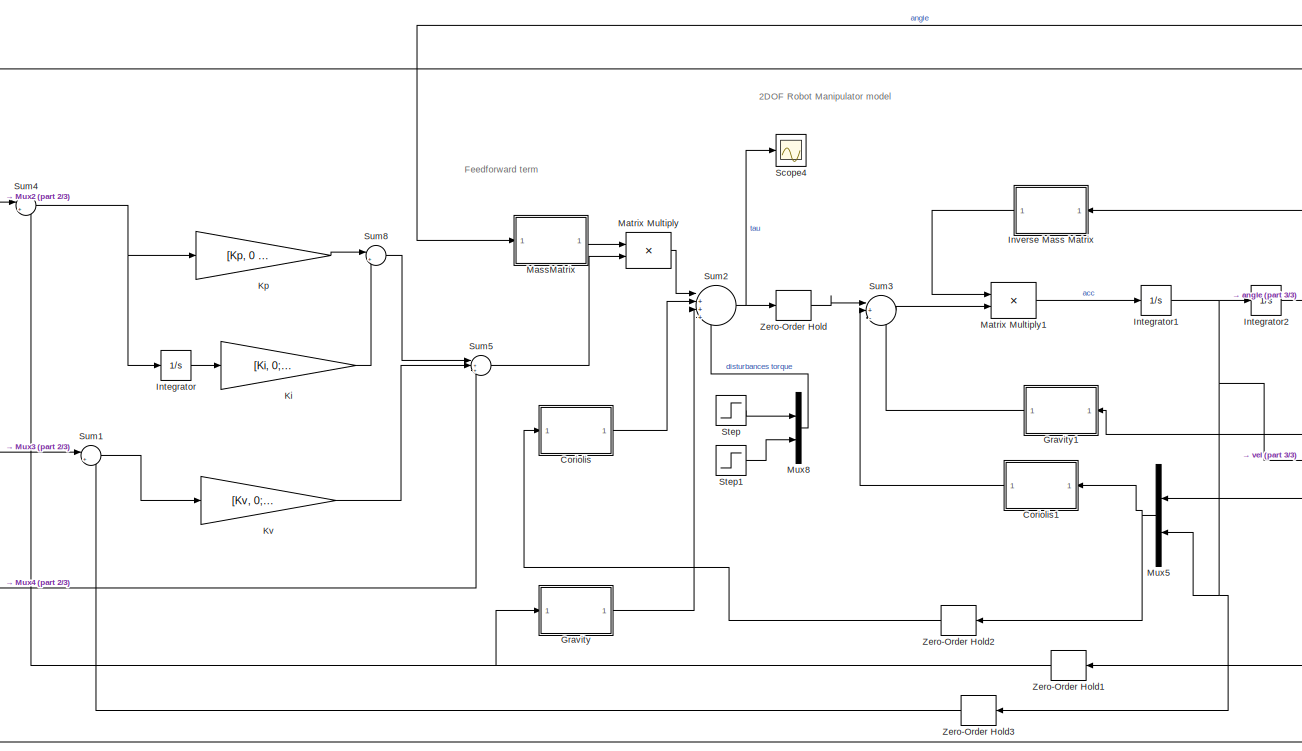
[diagram: root canvas - part 1/3, center side, full height]
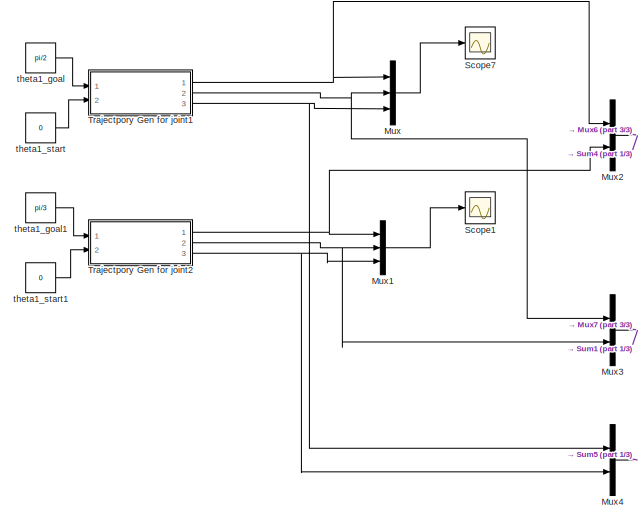
[diagram: root canvas - part 2/3, middle left region]
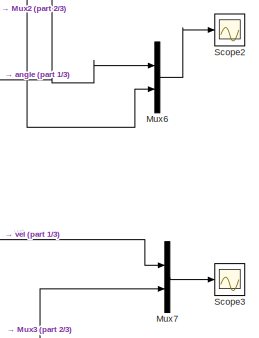
[diagram: root canvas - part 3/3, middle right region]
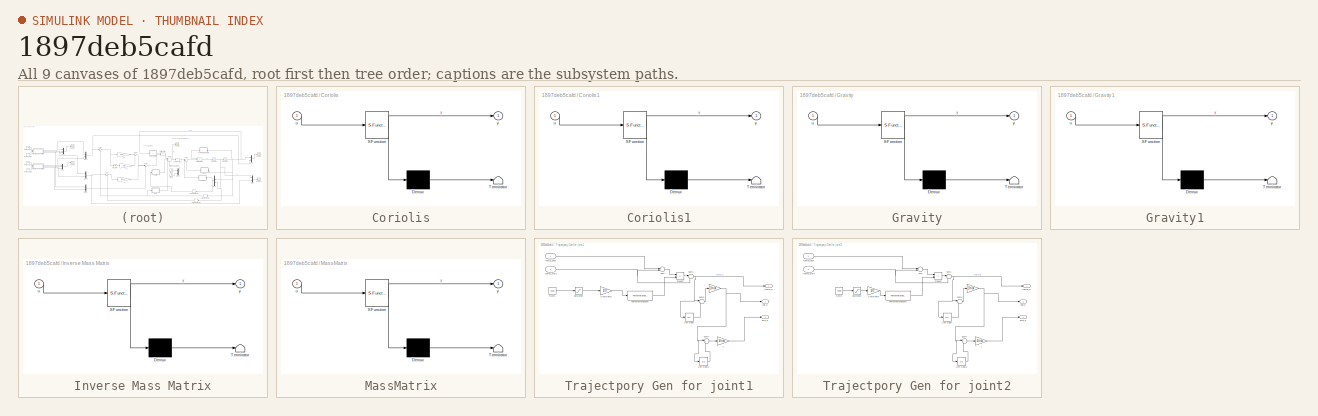
[diagram: thumbnail index - all 9 canvases of the model, root first then tree order]
MODEL slx_1897deb5cafd
KIND model
CONFIG AbsTol = auto
CONFIG EnableMultiTasking = off
CONFIG FixedStep = auto
CONFIG MaxStep = auto
CONFIG MinStep = auto
CONFIG RelTol = 1e-3
CONFIG SampleTimeConstraint = Unconstrained
CONFIG Solver = ode45
CONFIG SolverName = ode45
CONFIG StartTime = 0.0
CONFIG StopTime = 20
BLOCK [SubSystem] Coriolis
  ErrorFcn = Stateflow.Translate.translate
  PermitHierarchicalResolution = ExplicitOnly
  Ports = [1, 1]
  RequestExecContextInheritance = off
  SFBlockType = MATLAB Function
  TreatAsAtomicUnit = on
BLOCK [Demux] Coriolis/ Demux 
  Outputs = 1
  Ports = [1, 1]
BLOCK [S-Function] Coriolis/ SFunction 
  EnableBusSupport = on
  FunctionName = sf_sfun
  PortCounts = [1 2]
  Ports = [1, 2]
  SFcnIsStateOwnerBlock = off
  SFunctionDeploymentMode = off
  Tag = Stateflow S-Function CTC2DOF 1
BLOCK [Terminator] Coriolis/ Terminator 
BLOCK [Inport] Coriolis/u
  IconDisplay = Port number
BLOCK [Outport] Coriolis/y
  IconDisplay = Port number
BLOCK [SubSystem] Coriolis1
  ErrorFcn = Stateflow.Translate.translate
  PermitHierarchicalResolution = ExplicitOnly
  Ports = [1, 1]
  RequestExecContextInheritance = off
  SFBlockType = MATLAB Function
  TreatAsAtomicUnit = on
BLOCK [Demux] Coriolis1/ Demux 
  Outputs = 1
  Ports = [1, 1]
BLOCK [S-Function] Coriolis1/ SFunction 
  EnableBusSupport = on
  FunctionName = sf_sfun
  PortCounts = [1 2]
  Ports = [1, 2]
  SFcnIsStateOwnerBlock = off
  SFunctionDeploymentMode = off
  Tag = Stateflow S-Function CTC2DOF 5
BLOCK [Terminator] Coriolis1/ Terminator 
BLOCK [Inport] Coriolis1/u
  IconDisplay = Port number
BLOCK [Outport] Coriolis1/y
  IconDisplay = Port number
BLOCK [SubSystem] Gravity
  ErrorFcn = Stateflow.Translate.translate
  PermitHierarchicalResolution = ExplicitOnly
  Ports = [1, 1]
  RequestExecContextInheritance = off
  SFBlockType = MATLAB Function
  TreatAsAtomicUnit = on
BLOCK [Demux] Gravity/ Demux 
  Outputs = 1
  Ports = [1, 1]
BLOCK [S-Function] Gravity/ SFunction 
  EnableBusSupport = on
  FunctionName = sf_sfun
  PortCounts = [1 2]
  Ports = [1, 2]
  SFcnIsStateOwnerBlock = off
  SFunctionDeploymentMode = off
  Tag = Stateflow S-Function CTC2DOF 4
BLOCK [Terminator] Gravity/ Terminator 
BLOCK [Inport] Gravity/u
  IconDisplay = Port number
BLOCK [Outport] Gravity/y
  IconDisplay = Port number
BLOCK [SubSystem] Gravity1
  ErrorFcn = Stateflow.Translate.translate
  PermitHierarchicalResolution = ExplicitOnly
  Ports = [1, 1]
  RequestExecContextInheritance = off
  SFBlockType = MATLAB Function
  TreatAsAtomicUnit = on
BLOCK [Demux] Gravity1/ Demux 
  Outputs = 1
  Ports = [1, 1]
BLOCK [S-Function] Gravity1/ SFunction 
  EnableBusSupport = on
  FunctionName = sf_sfun
  PortCounts = [1 2]
  Ports = [1, 2]
  SFcnIsStateOwnerBlock = off
  SFunctionDeploymentMode = off
  Tag = Stateflow S-Function CTC2DOF 6
BLOCK [Terminator] Gravity1/ Terminator 
BLOCK [Inport] Gravity1/u
  IconDisplay = Port number
BLOCK [Outport] Gravity1/y
  IconDisplay = Port number
BLOCK [Integrator] Integrator
  InitialCondition = [0; 0]
  Ports = [1, 1]
BLOCK [Integrator] Integrator1
  InitialCondition = [0; 0]
  Ports = [1, 1]
BLOCK [Integrator] Integrator2
  InitialCondition = [0; 0]
  Ports = [1, 1]
BLOCK [SubSystem] Inverse Mass Matrix
  ErrorFcn = Stateflow.Translate.translate
  PermitHierarchicalResolution = ExplicitOnly
  Ports = [1, 1]
  RequestExecContextInheritance = off
  SFBlockType = MATLAB Function
  TreatAsAtomicUnit = on
BLOCK [Demux] Inverse Mass Matrix/ Demux 
  Outputs = 1
  Ports = [1, 1]
BLOCK [S-Function] Inverse Mass Matrix/ SFunction 
  EnableBusSupport = on
  FunctionName = sf_sfun
  PortCounts = [1 2]
  Ports = [1, 2]
  SFcnIsStateOwnerBlock = off
  SFunctionDeploymentMode = off
  Tag = Stateflow S-Function CTC2DOF 3
BLOCK [Terminator] Inverse Mass Matrix/ Terminator 
BLOCK [Inport] Inverse Mass Matrix/u
  IconDisplay = Port number
BLOCK [Outport] Inverse Mass Matrix/y
  IconDisplay = Port number
BLOCK [Gain] Ki
  Gain = [Ki, 0; 0, Ki]
  Multiplication = Matrix(K*u)
  OutDataTypeStr = Inherit: Inherit via internal rule
  ParamDataTypeStr = Inherit: Inherit via internal rule
  SaturateOnIntegerOverflow = off
BLOCK [Gain] Kp
  Gain = [Kp, 0 ; 0, Kp]
  Multiplication = Matrix(K*u)
  OutDataTypeStr = Inherit: Inherit via internal rule
  ParamDataTypeStr = Inherit: Inherit via internal rule
  SaturateOnIntegerOverflow = off
BLOCK [Gain] Kv
  Gain = [Kv, 0; 0, Kv]
  Multiplication = Matrix(K*u)
  OutDataTypeStr = Inherit: Inherit via internal rule
  ParamDataTypeStr = Inherit: Inherit via internal rule
  SaturateOnIntegerOverflow = off
BLOCK [SubSystem] MassMatrix
  ErrorFcn = Stateflow.Translate.translate
  PermitHierarchicalResolution = ExplicitOnly
  Ports = [1, 1]
  RequestExecContextInheritance = off
  SFBlockType = MATLAB Function
  TreatAsAtomicUnit = on
BLOCK [Demux] MassMatrix/ Demux 
  Outputs = 1
  Ports = [1, 1]
BLOCK [S-Function] MassMatrix/ SFunction 
  EnableBusSupport = on
  FunctionName = sf_sfun
  PortCounts = [1 2]
  Ports = [1, 2]
  SFcnIsStateOwnerBlock = off
  SFunctionDeploymentMode = off
  Tag = Stateflow S-Function CTC2DOF 2
BLOCK [Terminator] MassMatrix/ Terminator 
BLOCK [Inport] MassMatrix/u
  IconDisplay = Port number
BLOCK [Outport] MassMatrix/y
  IconDisplay = Port number
BLOCK [Product] Matrix Multiply
  InputSameDT = off
  Multiplication = Matrix(*)
  OutDataTypeStr = Inherit: Inherit via internal rule
  Ports = [2, 1]
  RndMeth = Floor
  SaturateOnIntegerOverflow = off
BLOCK [Product] Matrix Multiply1
  InputSameDT = off
  Multiplication = Matrix(*)
  OutDataTypeStr = Inherit: Inherit via internal rule
  Ports = [2, 1]
  RndMeth = Floor
  SaturateOnIntegerOverflow = off
BLOCK [Mux] Mux
  DisplayOption = bar
  Inputs = 3
  Ports = [3, 1]
BLOCK [Mux] Mux1
  DisplayOption = bar
  Inputs = 3
  Ports = [3, 1]
BLOCK [Mux] Mux2
  DisplayOption = bar
  Inputs = 2
  Ports = [2, 1]
BLOCK [Mux] Mux3
  DisplayOption = bar
  Inputs = 2
  Ports = [2, 1]
BLOCK [Mux] Mux4
  DisplayOption = bar
  Inputs = 2
  Ports = [2, 1]
BLOCK [Mux] Mux5
  DisplayOption = bar
  Inputs = 2
  Ports = [2, 1]
BLOCK [Mux] Mux6
  DisplayOption = bar
  Inputs = 2
  Ports = [2, 1]
BLOCK [Mux] Mux7
  DisplayOption = bar
  Inputs = 2
  Ports = [2, 1]
BLOCK [Mux] Mux8
  DisplayOption = bar
  Inputs = 2
  Ports = [2, 1]
BLOCK [Scope] Scope1
  Floating = off
  NumInputPorts = 1
  Ports = [1]
  ScopeSpecificationString = Simulink.scopes.TimeScopeBlockCfg('CurrentConfiguration', extmgr.ConfigurationSet(extmgr.Configuration('Core','General UI',true),extmgr.Configuration('Core','Source UI',true),extmgr.Configuration('Sources','WiredSimulink',true,'DataLoggingVariableName','ScopeData1'),extmgr.Configuration('Visuals','Time Domain',true,'SerializedDisplays',{struct('MinYLimReal','-0.30223','MaxYLimReal','0.90625','YLab...<+1531ch>
BLOCK [Scope] Scope2
  Floating = off
  NumInputPorts = 1
  Ports = [1]
  ScopeSpecificationString = Simulink.scopes.TimeScopeBlockCfg('CurrentConfiguration', extmgr.ConfigurationSet(extmgr.Configuration('Core','General UI',true),extmgr.Configuration('Core','Source UI',true),extmgr.Configuration('Sources','WiredSimulink',true,'DataLoggingVariableName','ScopeData2'),extmgr.Configuration('Visuals','Time Domain',true,'SerializedDisplays',{struct('MinYLimReal','-1.96385','MaxYLimReal','1.96672','YLab...<+1522ch>
BLOCK [Scope] Scope3
  Floating = off
  NumInputPorts = 1
  Ports = [1]
  ScopeSpecificationString = Simulink.scopes.TimeScopeBlockCfg('CurrentConfiguration', extmgr.ConfigurationSet(extmgr.Configuration('Core','General UI',true),extmgr.Configuration('Core','Source UI',true),extmgr.Configuration('Sources','WiredSimulink',true,'DataLoggingVariableName','ScopeData3'),extmgr.Configuration('Visuals','Time Domain',true,'SerializedDisplays',{struct('MinYLimReal','-0.05126','MaxYLimReal','0.44382','YLab...<+1508ch>
BLOCK [Scope] Scope4
  Floating = off
  NumInputPorts = 1
  Ports = [1]
  ScopeSpecificationString = Simulink.scopes.TimeScopeBlockCfg('CurrentConfiguration', extmgr.ConfigurationSet(extmgr.Configuration('Core','General UI',true),extmgr.Configuration('Core','Source UI',true),extmgr.Configuration('Sources','WiredSimulink',true,'DataLoggingVariableName','ScopeData4'),extmgr.Configuration('Visuals','Time Domain',true,'SerializedDisplays',{struct('MinYLimReal','-0.36788','MaxYLimReal','1.6342','YLabe...<+1441ch>
BLOCK [Scope] Scope7
  Floating = off
  NumInputPorts = 1
  Ports = [1]
  ScopeSpecificationString = Simulink.scopes.TimeScopeBlockCfg('CurrentConfiguration', extmgr.ConfigurationSet(extmgr.Configuration('Core','General UI',true),extmgr.Configuration('Core','Source UI',true),extmgr.Configuration('Sources','WiredSimulink',true),extmgr.Configuration('Visuals','Time Domain',true,'SerializedDisplays',{struct('MinYLimReal','-2.83312','MaxYLimReal','2.83312','YLabelReal','','MinYLimMag','0.00000','MaxY...<+1492ch>
BLOCK [Step] Step
  SampleTime = 0
  Time = 10
BLOCK [Step] Step1
  After = 0
  SampleTime = 0
  Time = 15
BLOCK [Sum] Sum1
  IconShape = round
  InputSameDT = off
  Inputs = |+-
  OutDataTypeStr = Inherit: Inherit via internal rule
  Ports = [2, 1]
  SaturateOnIntegerOverflow = off
BLOCK [Sum] Sum2
  IconShape = round
  InputSameDT = off
  Inputs = |+++-
  OutDataTypeStr = Inherit: Inherit via internal rule
  Ports = [4, 1]
  SaturateOnIntegerOverflow = off
BLOCK [Sum] Sum3
  IconShape = round
  InputSameDT = off
  Inputs = |+--
  OutDataTypeStr = Inherit: Inherit via internal rule
  Ports = [3, 1]
  SaturateOnIntegerOverflow = off
BLOCK [Sum] Sum4
  IconShape = round
  InputSameDT = off
  Inputs = |+-
  OutDataTypeStr = Inherit: Inherit via internal rule
  Ports = [2, 1]
  SaturateOnIntegerOverflow = off
BLOCK [Sum] Sum5
  IconShape = round
  InputSameDT = off
  Inputs = |+++
  OutDataTypeStr = Inherit: Inherit via internal rule
  Ports = [3, 1]
  SaturateOnIntegerOverflow = off
BLOCK [Sum] Sum8
  IconShape = round
  InputSameDT = off
  Inputs = |++
  OutDataTypeStr = Inherit: Inherit via internal rule
  Ports = [2, 1]
  SaturateOnIntegerOverflow = off
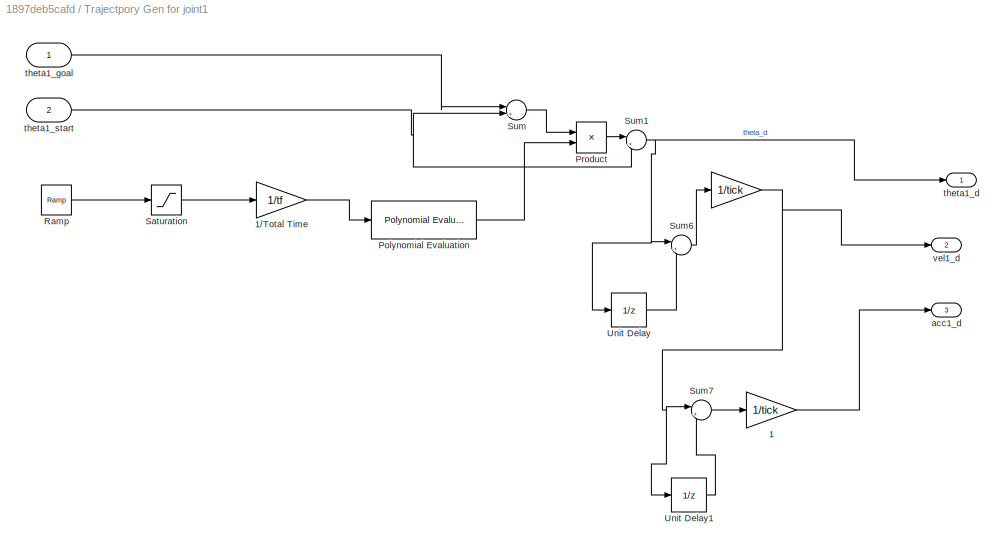
BLOCK [SubSystem] Trajectpory Gen for joint1
  Ports = [2, 3]
  RequestExecContextInheritance = off
BLOCK [Gain] Trajectpory Gen for joint1/ 
  Gain = 1/tick
  OutDataTypeStr = Inherit: Inherit via internal rule
  ParamDataTypeStr = Inherit: Inherit via internal rule
  SaturateOnIntegerOverflow = off
BLOCK [Gain] Trajectpory Gen for joint1/ 1
  Gain = 1/tick
  OutDataTypeStr = Inherit: Inherit via internal rule
  ParamDataTypeStr = Inherit: Inherit via internal rule
  SaturateOnIntegerOverflow = off
BLOCK [Gain] Trajectpory Gen for joint1/1//Total Time 
  Gain = 1/tf
  OutDataTypeStr = Inherit: Inherit via internal rule
  ParamDataTypeStr = Inherit: Inherit via internal rule
  SaturateOnIntegerOverflow = off
BLOCK [Reference] Trajectpory Gen for joint1/Polynomial Evaluation  REF=dsppolyfun/Polynomial
Evaluation
  Ports = [1, 1]
  SourceBlock = dsppolyfun/Polynomial\nEvaluation
  SourceProductBaseCode = DS
  SourceProductName = DSP System Toolbox
  SourceType = Polynomial Evaluation
BLOCK [Product] Trajectpory Gen for joint1/Product
  InputSameDT = off
  OutDataTypeStr = Inherit: Inherit via internal rule
  Ports = [2, 1]
  RndMeth = Floor
  SaturateOnIntegerOverflow = off
BLOCK [Reference] Trajectpory Gen for joint1/Ramp  REF=simulink/Sources/Ramp
  Ports = [0, 1]
  SourceBlock = simulink/Sources/Ramp
  SourceProductBaseCode = SL
  SourceProductName = Simulink
  SourceType = Ramp
BLOCK [Saturate] Trajectpory Gen for joint1/Saturation
  InputPortMap = u0
  LowerLimit = -tf
  Ports = [1, 1]
  UpperLimit = tf
BLOCK [Sum] Trajectpory Gen for joint1/Sum
  IconShape = round
  InputSameDT = off
  Inputs = |+-
  OutDataTypeStr = Inherit: Inherit via internal rule
  Ports = [2, 1]
  SaturateOnIntegerOverflow = off
BLOCK [Sum] Trajectpory Gen for joint1/Sum1
  IconShape = round
  InputSameDT = off
  Inputs = |++
  OutDataTypeStr = Inherit: Inherit via internal rule
  Ports = [2, 1]
  SaturateOnIntegerOverflow = off
BLOCK [Sum] Trajectpory Gen for joint1/Sum6
  IconShape = round
  InputSameDT = off
  Inputs = |+-
  OutDataTypeStr = Inherit: Inherit via internal rule
  Ports = [2, 1]
  SaturateOnIntegerOverflow = off
BLOCK [Sum] Trajectpory Gen for joint1/Sum7
  IconShape = round
  InputSameDT = off
  Inputs = |+-
  OutDataTypeStr = Inherit: Inherit via internal rule
  Ports = [2, 1]
  SaturateOnIntegerOverflow = off
BLOCK [UnitDelay] Trajectpory Gen for joint1/Unit Delay
  InputProcessing = Elements as channels (sample based)
  SampleTime = tick
BLOCK [UnitDelay] Trajectpory Gen for joint1/Unit Delay1
  InputProcessing = Elements as channels (sample based)
  SampleTime = tick
BLOCK [Outport] Trajectpory Gen for joint1/acc1_d
  IconDisplay = Port number
  Port = 3
BLOCK [Outport] Trajectpory Gen for joint1/theta1_d
  IconDisplay = Port number
BLOCK [Inport] Trajectpory Gen for joint1/theta1_goal
  IconDisplay = Port number
BLOCK [Inport] Trajectpory Gen for joint1/theta1_start
  IconDisplay = Port number
  Port = 2
BLOCK [Outport] Trajectpory Gen for joint1/vel1_d
  IconDisplay = Port number
  Port = 2
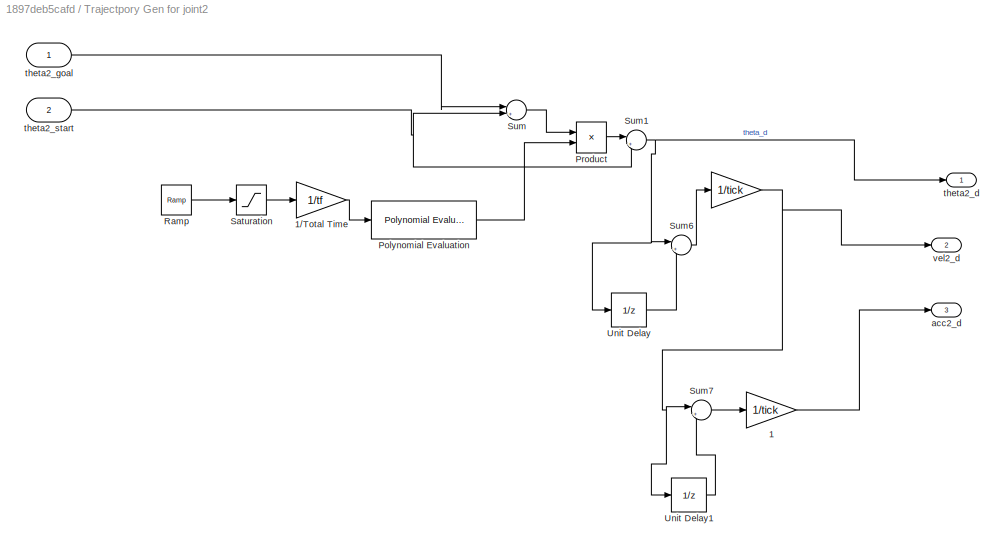
BLOCK [SubSystem] Trajectpory Gen for joint2
  Ports = [2, 3]
  RequestExecContextInheritance = off
BLOCK [Gain] Trajectpory Gen for joint2/ 
  Gain = 1/tick
  OutDataTypeStr = Inherit: Inherit via internal rule
  ParamDataTypeStr = Inherit: Inherit via internal rule
  SaturateOnIntegerOverflow = off
BLOCK [Gain] Trajectpory Gen for joint2/ 1
  Gain = 1/tick
  OutDataTypeStr = Inherit: Inherit via internal rule
  ParamDataTypeStr = Inherit: Inherit via internal rule
  SaturateOnIntegerOverflow = off
BLOCK [Gain] Trajectpory Gen for joint2/1//Total Time 
  Gain = 1/tf
  OutDataTypeStr = Inherit: Inherit via internal rule
  ParamDataTypeStr = Inherit: Inherit via internal rule
  SaturateOnIntegerOverflow = off
BLOCK [Reference] Trajectpory Gen for joint2/Polynomial Evaluation  REF=dsppolyfun/Polynomial
Evaluation
  Ports = [1, 1]
  SourceBlock = dsppolyfun/Polynomial\nEvaluation
  SourceProductBaseCode = DS
  SourceProductName = DSP System Toolbox
  SourceType = Polynomial Evaluation
BLOCK [Product] Trajectpory Gen for joint2/Product
  InputSameDT = off
  OutDataTypeStr = Inherit: Inherit via internal rule
  Ports = [2, 1]
  RndMeth = Floor
  SaturateOnIntegerOverflow = off
BLOCK [Reference] Trajectpory Gen for joint2/Ramp  REF=simulink/Sources/Ramp
  Ports = [0, 1]
  SourceBlock = simulink/Sources/Ramp
  SourceProductBaseCode = SL
  SourceProductName = Simulink
  SourceType = Ramp
BLOCK [Saturate] Trajectpory Gen for joint2/Saturation
  InputPortMap = u0
  LowerLimit = -tf
  Ports = [1, 1]
  UpperLimit = tf
BLOCK [Sum] Trajectpory Gen for joint2/Sum
  IconShape = round
  InputSameDT = off
  Inputs = |+-
  OutDataTypeStr = Inherit: Inherit via internal rule
  Ports = [2, 1]
  SaturateOnIntegerOverflow = off
BLOCK [Sum] Trajectpory Gen for joint2/Sum1
  IconShape = round
  InputSameDT = off
  Inputs = |++
  OutDataTypeStr = Inherit: Inherit via internal rule
  Ports = [2, 1]
  SaturateOnIntegerOverflow = off
BLOCK [Sum] Trajectpory Gen for joint2/Sum6
  IconShape = round
  InputSameDT = off
  Inputs = |+-
  OutDataTypeStr = Inherit: Inherit via internal rule
  Ports = [2, 1]
  SaturateOnIntegerOverflow = off
BLOCK [Sum] Trajectpory Gen for joint2/Sum7
  IconShape = round
  InputSameDT = off
  Inputs = |+-
  OutDataTypeStr = Inherit: Inherit via internal rule
  Ports = [2, 1]
  SaturateOnIntegerOverflow = off
BLOCK [UnitDelay] Trajectpory Gen for joint2/Unit Delay
  InputProcessing = Elements as channels (sample based)
  SampleTime = tick
BLOCK [UnitDelay] Trajectpory Gen for joint2/Unit Delay1
  InputProcessing = Elements as channels (sample based)
  SampleTime = tick
BLOCK [Outport] Trajectpory Gen for joint2/acc2_d
  IconDisplay = Port number
  Port = 3
BLOCK [Outport] Trajectpory Gen for joint2/theta2_d
  IconDisplay = Port number
BLOCK [Inport] Trajectpory Gen for joint2/theta2_goal
  IconDisplay = Port number
BLOCK [Inport] Trajectpory Gen for joint2/theta2_start
  IconDisplay = Port number
  Port = 2
BLOCK [Outport] Trajectpory Gen for joint2/vel2_d
  IconDisplay = Port number
  Port = 2
BLOCK [ZeroOrderHold] Zero-Order Hold
  SampleTime = tick
BLOCK [ZeroOrderHold] Zero-Order Hold1
  SampleTime = tick
BLOCK [ZeroOrderHold] Zero-Order Hold2
  SampleTime = tick
BLOCK [ZeroOrderHold] Zero-Order Hold3
  SampleTime = tick
BLOCK [Constant] theta1_goal
  SampleTime = tick
  Value = pi/2
BLOCK [Constant] theta1_goal1
  SampleTime = tick
  Value = pi/3
BLOCK [Constant] theta1_start
  SampleTime = tick
  Value = 0
BLOCK [Constant] theta1_start1
  SampleTime = tick
  Value = 0
ANNOTATION (root): 2DOF Robot Manipulator model
ANNOTATION (root): Feedforward term
LINE Coriolis1:1 -> Sum3:2
LINE Coriolis:1 -> Sum2:2
LINE Gravity1:1 -> Sum3:3
LINE Gravity:1 -> Sum2:3
NET Integrator1:1 -> Integrator2:1, Mux5:2, Mux7:1, Zero-Order Hold3:1
NET Integrator2:1 -> Gravity1:1, Inverse Mass Matrix:1, MassMatrix:1, Mux5:1, Mux6:1, Zero-Order Hold1:1
LINE Integrator:1 -> Ki:1
LINE Inverse Mass Matrix:1 -> Matrix Multiply1:1
LINE Ki:1 -> Sum8:2
LINE Kp:1 -> Sum8:1
LINE Kv:1 -> Sum5:2
LINE MassMatrix:1 -> Matrix Multiply:1
LINE Matrix Multiply1:1 -> Integrator1:1
LINE Matrix Multiply:1 -> Sum2:1
LINE Mux1:1 -> Scope1:1
NET Mux2:1 -> Mux6:2, Sum4:1
NET Mux3:1 -> Mux7:2, Sum1:1
LINE Mux4:1 -> Sum5:3
NET Mux5:1 -> Coriolis1:1, Zero-Order Hold2:1
LINE Mux6:1 -> Scope2:1
LINE Mux7:1 -> Scope3:1
LINE Mux8:1 -> Sum2:4
LINE Mux:1 -> Scope7:1
LINE Step1:1 -> Mux8:2
LINE Step:1 -> Mux8:1
LINE Sum1:1 -> Kv:1
NET Sum2:1 -> Scope4:1, Zero-Order Hold:1
LINE Sum3:1 -> Matrix Multiply1:2
NET Sum4:1 -> Integrator:1, Kp:1
LINE Sum5:1 -> Matrix Multiply:2
LINE Sum8:1 -> Sum5:1
LINE Trajectpory Gen for joint1/ 1:1 -> Trajectpory Gen for joint1/acc1_d:1
NET Trajectpory Gen for joint1/ :1 -> Trajectpory Gen for joint1/Sum7:1, Trajectpory Gen for joint1/Unit Delay1:1, Trajectpory Gen for joint1/vel1_d:1
LINE Trajectpory Gen for joint1/1//Total Time :1 -> Trajectpory Gen for joint1/Polynomial Evaluation:1
LINE Trajectpory Gen for joint1/Polynomial Evaluation:1 -> Trajectpory Gen for joint1/Product:2
LINE Trajectpory Gen for joint1/Product:1 -> Trajectpory Gen for joint1/Sum1:1
LINE Trajectpory Gen for joint1/Ramp:1 -> Trajectpory Gen for joint1/Saturation:1
LINE Trajectpory Gen for joint1/Saturation:1 -> Trajectpory Gen for joint1/1//Total Time :1
NET Trajectpory Gen for joint1/Sum1:1 -> Trajectpory Gen for joint1/Sum6:1, Trajectpory Gen for joint1/Unit Delay:1, Trajectpory Gen for joint1/theta1_d:1
LINE Trajectpory Gen for joint1/Sum6:1 -> Trajectpory Gen for joint1/ :1
LINE Trajectpory Gen for joint1/Sum7:1 -> Trajectpory Gen for joint1/ 1:1
LINE Trajectpory Gen for joint1/Sum:1 -> Trajectpory Gen for joint1/Product:1
LINE Trajectpory Gen for joint1/Unit Delay1:1 -> Trajectpory Gen for joint1/Sum7:2
LINE Trajectpory Gen for joint1/Unit Delay:1 -> Trajectpory Gen for joint1/Sum6:2
LINE Trajectpory Gen for joint1/theta1_goal:1 -> Trajectpory Gen for joint1/Sum:1
NET Trajectpory Gen for joint1/theta1_start:1 -> Trajectpory Gen for joint1/Sum1:2, Trajectpory Gen for joint1/Sum:2
NET Trajectpory Gen for joint1:1 -> Mux2:1, Mux:1
NET Trajectpory Gen for joint1:2 -> Mux3:1, Mux:2
NET Trajectpory Gen for joint1:3 -> Mux4:1, Mux:3
LINE Trajectpory Gen for joint2/ 1:1 -> Trajectpory Gen for joint2/acc2_d:1
NET Trajectpory Gen for joint2/ :1 -> Trajectpory Gen for joint2/Sum7:1, Trajectpory Gen for joint2/Unit Delay1:1, Trajectpory Gen for joint2/vel2_d:1
LINE Trajectpory Gen for joint2/1//Total Time :1 -> Trajectpory Gen for joint2/Polynomial Evaluation:1
LINE Trajectpory Gen for joint2/Polynomial Evaluation:1 -> Trajectpory Gen for joint2/Product:2
LINE Trajectpory Gen for joint2/Product:1 -> Trajectpory Gen for joint2/Sum1:1
LINE Trajectpory Gen for joint2/Ramp:1 -> Trajectpory Gen for joint2/Saturation:1
LINE Trajectpory Gen for joint2/Saturation:1 -> Trajectpory Gen for joint2/1//Total Time :1
NET Trajectpory Gen for joint2/Sum1:1 -> Trajectpory Gen for joint2/Sum6:1, Trajectpory Gen for joint2/Unit Delay:1, Trajectpory Gen for joint2/theta2_d:1
LINE Trajectpory Gen for joint2/Sum6:1 -> Trajectpory Gen for joint2/ :1
LINE Trajectpory Gen for joint2/Sum7:1 -> Trajectpory Gen for joint2/ 1:1
LINE Trajectpory Gen for joint2/Sum:1 -> Trajectpory Gen for joint2/Product:1
LINE Trajectpory Gen for joint2/Unit Delay1:1 -> Trajectpory Gen for joint2/Sum7:2
LINE Trajectpory Gen for joint2/Unit Delay:1 -> Trajectpory Gen for joint2/Sum6:2
LINE Trajectpory Gen for joint2/theta2_goal:1 -> Trajectpory Gen for joint2/Sum:1
NET Trajectpory Gen for joint2/theta2_start:1 -> Trajectpory Gen for joint2/Sum1:2, Trajectpory Gen for joint2/Sum:2
NET Trajectpory Gen for joint2:1 -> Mux1:1, Mux2:2
NET Trajectpory Gen for joint2:2 -> Mux1:2, Mux3:2
NET Trajectpory Gen for joint2:3 -> Mux1:3, Mux4:2
NET Zero-Order Hold1:1 -> Gravity:1, Sum4:2
LINE Zero-Order Hold2:1 -> Coriolis:1
LINE Zero-Order Hold3:1 -> Sum1:2
LINE Zero-Order Hold:1 -> Sum3:1
LINE theta1_goal1:1 -> Trajectpory Gen for joint2:1
LINE theta1_goal:1 -> Trajectpory Gen for joint1:1
LINE theta1_start1:1 -> Trajectpory Gen for joint2:2
LINE theta1_start:1 -> Trajectpory Gen for joint1:2
note: NET lines group one-source signal fan-out (src -> all destinations, sorted); 1:1 wires keep LINE
CHART Coriolis states=1 transitions=1
  STATE_LABEL 'eML_blk_kernel()'
  STATE_LABEL 'SCRIPT:\nfunction y = V(u)\n\nthe1 = u(1);\nthe2 = u(2);\n\nvel1 = u(3);\nvel2 = u(4);\n\nm1 = 0.233;   %kg\nm2 = 0.2;\nl1 = 0.192;\nl2 = 0.185;\nL1 = 0.27;\nL2 = 0.23;\ng = 9.81;\n\nI1 = (1/3)*m1*l1^2;\nI2 = (1/3)*m2*l2^2;\n\n\nV11 = -m2*L1*l2*sin(the2)*(vel1*vel2 + 0.5*vel2^2);\nV21 = 0.5*m2*L1*l2*sin(the2)*vel1^2;\n\n\ny = [V11;V21];\n'
CHART MassMatrix states=1 transitions=1
  STATE_LABEL 'eML_blk_kernel()'
  STATE_LABEL 'SCRIPT:\nfunction y = MassMatrix(u)\nthe1 = u(1);\nthe2 = u(2);\n\nm1 = 0.233;   %kg\nm2 = 0.2;\nl1 = 0.192;\nl2 = 0.185;\nL1 = 0.27;\nL2 = 0.23;\ng = 9.81;\n\nI1 = (1/3)*m1*l1^2;\nI2 = (1/3)*m2*l2^2;\n\nM11 = m1*l1^2 + m2*(L1^2 + l2^2 + L1*l2*cos(the2)) + I1 + I2;\nM12 = m2*(l2^2 + L1*l2*cos(the2)) + I2;\nM21 = m2*(l2^2 + L1*l2*cos(the2)) + I2;\nM22 = m2*l2^2 + I2;\n\n\n\ny = [M11, M12; M21, M22];\n'
CHART Inverse Mass Matrix states=1 transitions=1
  STATE_LABEL 'eML_blk_kernel()'
  STATE_LABEL 'SCRIPT:\nfunction y = INVMass(u)\n\nthe1 = u(1);\nthe2 = u(2);\n\nm1 = 0.233;   %kg\nm2 = 0.2;\nl1 = 0.23;    % chagne the parameter value for make an imperfect model\nl2 = 0.17;    % chagne the parameter value for make an imperfect model\nL1 = 0.3;     % chagne the parameter value for make an imperfect model\n%l1 = 0.192;  % This is perferct parameter for perfect model\n%l2 = 0.185; % This is perferct parame...<+386ch>'
CHART Gravity states=1 transitions=1
  STATE_LABEL 'eML_blk_kernel()'
  STATE_LABEL 'SCRIPT:\nfunction y = G(u)\n\nthe1 = u(1);\nthe2 = u(2);\n\nm1 = 0.233;   %kg\nm2 = 0.2;\nl1 = 0.192;\nl2 = 0.185;\nL1 = 0.27;\nL2 = 0.23;\ng = 9.81;\n\nI1 = (1/3)*m1*l1^2;\nI2 = (1/3)*m2*l2^2;\n\nG11 = m1*g*l1*cos(the1) + m2*g*L1*cos(the1) + m2*g*l2*cos(the1+the2);\nG21 = m2*g*l2*cos(the1+the2);\n\ny = [G11;G21];\n'
CHART Coriolis1 states=1 transitions=1
  STATE_LABEL 'eML_blk_kernel()'
  STATE_LABEL 'SCRIPT:\nfunction y = V(u)\n\nthe1 = u(1);\nthe2 = u(2);\n\nvel1 = u(3);\nvel2 = u(4);\n\nm1 = 0.233;   %kg\nm2 = 0.2;\nl1 = 0.23;    % chagne the parameter value for make an imperfect model\nl2 = 0.17;    % chagne the parameter value for make an imperfect model\nL1 = 0.3;     % chagne the parameter value for make an imperfect model\n%l1 = 0.192;  % This is perferct parameter for perfect model\n%l2 = 0.185; % Th...<+275ch>'
CHART Gravity1 states=1 transitions=1
  STATE_LABEL 'eML_blk_kernel()'
  STATE_LABEL 'SCRIPT:\nfunction y = G(u)\n\nthe1 = u(1);\nthe2 = u(2);\n\nm1 = 0.233;   %kg\nm2 = 0.2;\nl1 = 0.23;    % chagne the parameter value for make an imperfect model\nl2 = 0.17;    % chagne the parameter value for make an imperfect model\n%l1 = 0.192;  % This is perferct parameter for perfect model\n%l2 = 0.185; % This is perferct parameter for perfect model\nL1 = 0.27;\nL2 = 0.23;\ng = 9.81;\n\nI1 = (1/3)*m1*l1^2;\nI2...<+135ch>'
